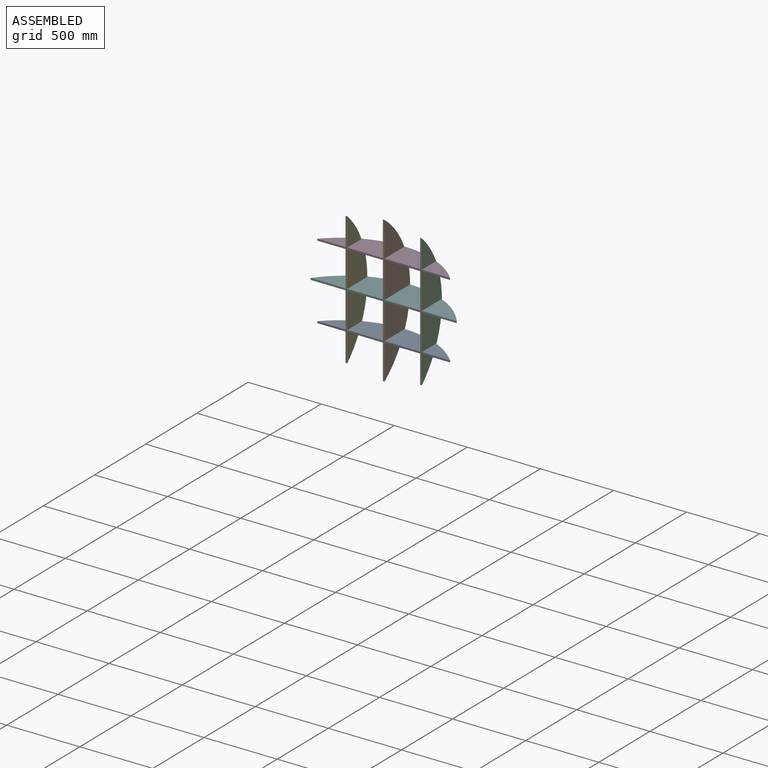
[diagram: assembled view]
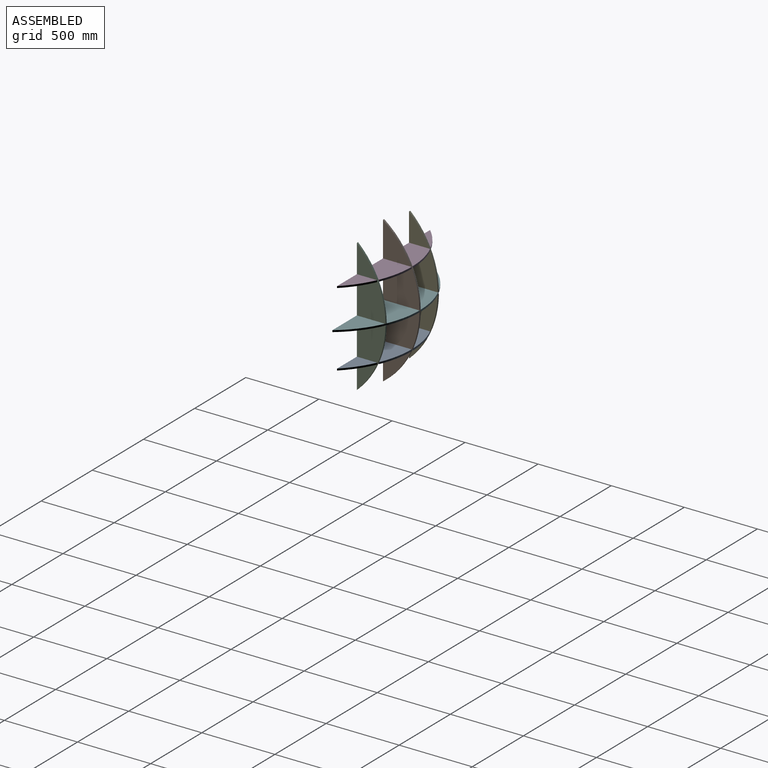
[diagram: assembled view, second angle]
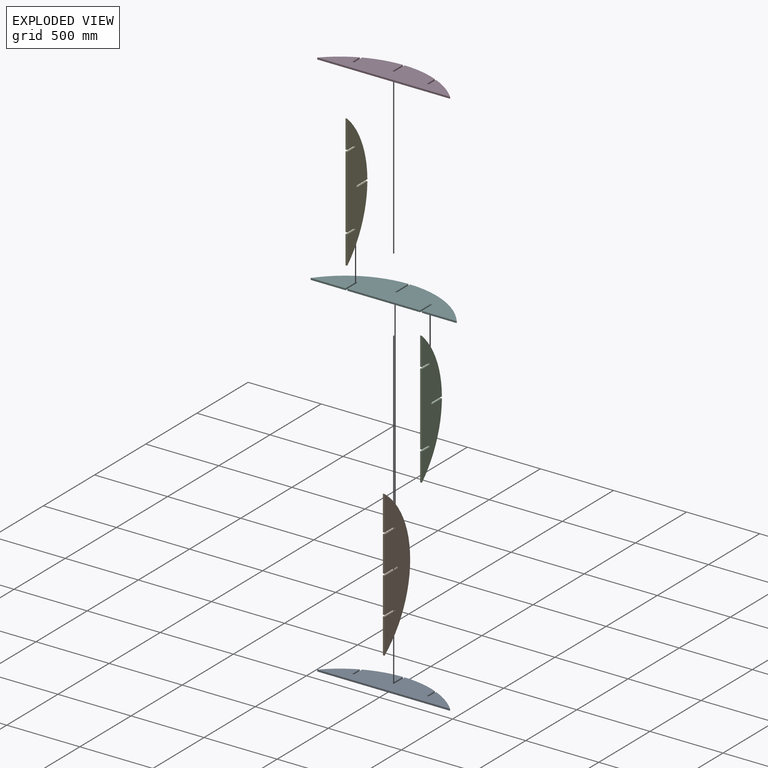
[diagram: exploded view]
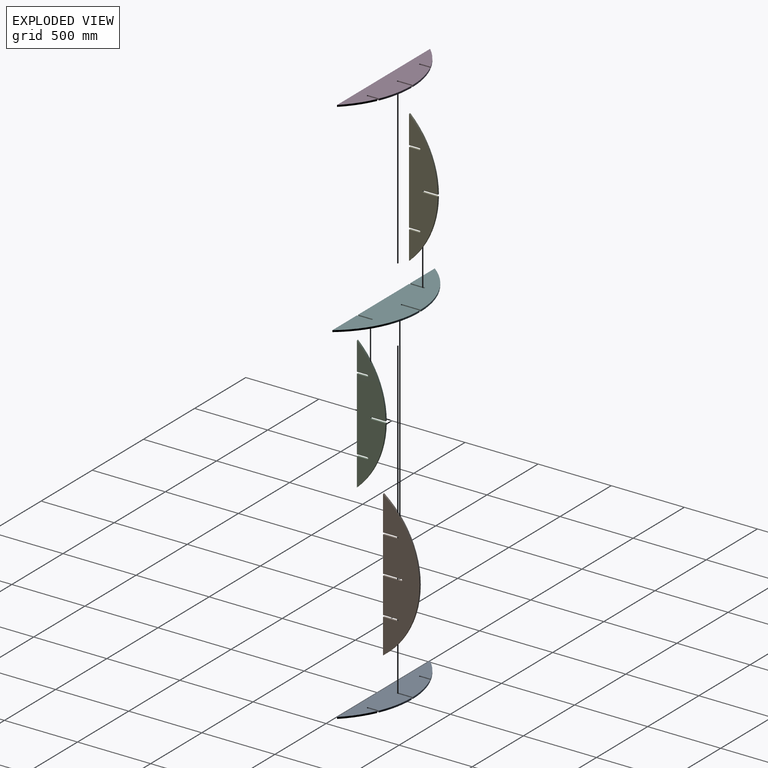
[diagram: exploded view, second angle]
ASSEMBLY  parts=6 mates=15
PART A: 16 faces, bbox 909x196x12 mm
  f0: plane 97.97x12mm, normal (1,0,0), area 1175.7mm2, adj f1,f13,f14,f15
  f1: cylinder r=625mm len=243mm, axis (0,0,-1), area 3001.3mm2, adj f0,f2,f14,f15
  f2: plane 73.26x12mm, normal (-1,0,0), area 879.1mm2, adj f1,f3,f14,f15
  f3: cylinder r=6mm len=12mm, axis (0,0,-1), area 226.2mm2, adj f2,f4,f14,f15
  f4: plane 67.89x12mm, normal (1,0,0), area 814.7mm2, adj f3,f5,f14,f15
  f5: cylinder r=625mm len=193.52mm, axis (0,0,-1), area 2876mm2, adj f4,f6,f14,f15
  f6: plane 909.03x12mm, normal (0,-1,0), area 10908.4mm2, adj f5,f7,f14,f15
  f7: cylinder r=625mm len=193.52mm, axis (0,0,-1), area 2876mm2, adj f6,f8,f14,f15
  f8: plane 67.89x12mm, normal (-1,0,0), area 814.7mm2, adj f7,f9,f14,f15
  f9: cylinder r=6mm len=12mm, axis (0,0,-1), area 226.2mm2, adj f8,f10,f14,f15
  f10: plane 73.26x12mm, normal (1,0,0), area 879.1mm2, adj f9,f11,f14,f15
  f11: cylinder r=625mm len=243mm, axis (0,0,-1), area 3001.3mm2, adj f10,f12,f14,f15
  f12: plane 97.97x12mm, normal (-1,0,0), area 1175.7mm2, adj f11,f13,f14,f15
  f13: cylinder r=6mm len=12mm, axis (0,0,-1), area 226.2mm2, adj f0,f12,f14,f15
  f14: plane 909.03x195.97mm, normal (0,0,1), area 120047mm2, adj f0,f1,f2,f3,f4,f5,f6,f7
  f15: plane 909.03x195.97mm, normal (0,0,-1), area 120047mm2, adj f0,f1,f2,f3,f4,f5,f6,f7
PART B: 16 faces, bbox 1000x250x12 mm
  f0: cylinder r=6mm len=12mm, axis (0,0,-1), area 226.2mm2, adj f1,f13,f14,f15
  f1: plane 98x12mm, normal (-1,0,0), area 1176mm2, adj f0,f2,f14,f15
  f2: plane 243x12mm, normal (0,-1,0), area 2916mm2, adj f1,f3,f14,f15
  f3: plane 125x12mm, normal (1,0,0), area 1500mm2, adj f2,f4,f14,f15
  f4: cylinder r=6mm len=12mm, axis (0,0,-1), area 226.2mm2, adj f3,f5,f14,f15
  f5: plane 125x12mm, normal (-1,0,0), area 1500mm2, adj f4,f6,f14,f15
  f6: plane 243x12mm, normal (0,-1,0), area 2916mm2, adj f5,f7,f14,f15
  f7: plane 98x12mm, normal (1,0,0), area 1176mm2, adj f6,f8,f14,f15
  f8: cylinder r=6mm len=12mm, axis (0,0,-1), area 226.2mm2, adj f7,f9,f14,f15
  f9: plane 98x12mm, normal (-1,0,0), area 1176mm2, adj f8,f10,f14,f15
  f10: plane 239x12mm, normal (0,-1,0), area 2868mm2, adj f9,f11,f14,f15
  f11: cylinder r=625mm len=1000mm, axis (0,0,-1), area 13909.4mm2, adj f10,f12,f14,f15
  f12: plane 239x12mm, normal (0,-1,0), area 2868mm2, adj f11,f13,f14,f15
  f13: plane 98x12mm, normal (1,0,0), area 1176mm2, adj f0,f12,f14,f15
  f14: plane 1000x250mm, normal (0,0,1), area 170703mm2, adj f0,f1,f2,f3,f4,f5,f6,f7
  f15: plane 1000x250mm, normal (0,0,-1), area 170703mm2, adj f0,f1,f2,f3,f4,f5,f6,f7
PART C: 16 faces, bbox 909x196x12 mm
  f0: plane 97.97x12mm, normal (1,0,0), area 1175.7mm2, adj f1,f13,f14,f15
  f1: cylinder r=625mm len=448.52mm, axis (0,0,-1), area 6035mm2, adj f0,f2,f14,f15
  f2: plane 193.52x12mm, normal (0,-1,0), area 2322.2mm2, adj f1,f3,f14,f15
  f3: plane 71x12mm, normal (1,0,0), area 852mm2, adj f2,f4,f14,f15
  f4: cylinder r=6mm len=12mm, axis (0,0,-1), area 226.2mm2, adj f3,f5,f14,f15
  f5: plane 71x12mm, normal (-1,0,0), area 852mm2, adj f4,f6,f14,f15
  f6: plane 498x12mm, normal (0,-1,0), area 5976mm2, adj f5,f7,f14,f15
  f7: plane 71x12mm, normal (1,0,0), area 852mm2, adj f6,f8,f14,f15
  f8: cylinder r=6mm len=12mm, axis (0,0,-1), area 226.2mm2, adj f7,f9,f14,f15
  f9: plane 71x12mm, normal (-1,0,0), area 852mm2, adj f8,f10,f14,f15
  f10: plane 193.52x12mm, normal (0,-1,0), area 2322.2mm2, adj f9,f11,f14,f15
  f11: cylinder r=625mm len=448.52mm, axis (0,0,-1), area 6035mm2, adj f10,f12,f14,f15
  f12: plane 97.97x12mm, normal (-1,0,0), area 1175.7mm2, adj f11,f13,f14,f15
  f13: cylinder r=6mm len=12mm, axis (0,0,-1), area 226.2mm2, adj f0,f12,f14,f15
  f14: plane 909.03x195.97mm, normal (0,0,1), area 120037.4mm2, adj f0,f1,f2,f3,f4,f5,f6,f7
  f15: plane 909.03x195.97mm, normal (0,0,-1), area 120037.4mm2, adj f0,f1,f2,f3,f4,f5,f6,f7
PART D: same geometry as A
PART E: same geometry as C
PART F: 16 faces, bbox 1000x250x12 mm
  f0: plane 98x12mm, normal (-1,0,0), area 1176mm2, adj f1,f13,f14,f15
  f1: plane 239.02x12mm, normal (0,-1,0), area 2868.3mm2, adj f0,f2,f14,f15
  f2: cylinder r=625mm len=494.02mm, axis (0,0,-1), area 6883.1mm2, adj f1,f3,f14,f15
  f3: plane 125x12mm, normal (-1,0,0), area 1500mm2, adj f2,f4,f14,f15
  f4: cylinder r=6mm len=12mm, axis (0,0,-1), area 226.2mm2, adj f3,f5,f14,f15
  f5: plane 125x12mm, normal (1,0,0), area 1500mm2, adj f4,f6,f14,f15
  f6: cylinder r=625mm len=494.02mm, axis (0,0,-1), area 6883.1mm2, adj f5,f7,f14,f15
  f7: plane 239.02x12mm, normal (0,-1,0), area 2868.3mm2, adj f6,f8,f14,f15
  f8: plane 98x12mm, normal (1,0,0), area 1176mm2, adj f7,f9,f14,f15
  f9: cylinder r=6mm len=12mm, axis (0,0,-1), area 226.2mm2, adj f8,f10,f14,f15
  f10: plane 98x12mm, normal (-1,0,0), area 1176mm2, adj f9,f11,f14,f15
  f11: plane 498x12mm, normal (0,-1,0), area 5976mm2, adj f10,f12,f14,f15
  f12: plane 98x12mm, normal (1,0,0), area 1176mm2, adj f11,f13,f14,f15
  f13: cylinder r=6mm len=12mm, axis (0,0,-1), area 226.2mm2, adj f0,f12,f14,f15
  f14: plane 1000.04x250mm, normal (0,0,1), area 170731.6mm2, adj f0,f1,f2,f3,f4,f5,f6,f7
  f15: plane 1000.04x250mm, normal (0,0,-1), area 170731.6mm2, adj f0,f1,f2,f3,f4,f5,f6,f7
PLACE A t=(44.31,42.79,-149.06)mm
PLACE B rot(axis=(0,-1,0),90deg) t=(504.83,42.79,-388.06)mm
PLACE C rot(axis=(0,-1,0),90deg) t=(759.83,42.79,-342.58)mm
PLACE D t=(44.31,42.79,360.94)mm
PLACE E rot(axis=(0,1,0),90deg) t=(237.83,42.79,566.45)mm
PLACE F t=(-1.19,42.79,105.94)mm fixed
MATE planar B.f13 <-> A.f15  axis (0,0,1) through (504.83,42.79,-149.06)mm
MATE planar A.f12 <-> B.f15  axis (-1,0,0) through (504.83,189.77,-143.06)mm
MATE planar B.f3 <-> F.f15  axis (0,0,1) through (498.83,105.29,105.94)mm
MATE planar A.f6 <-> B.f12  axis (0,-1,0) through (498.83,42.79,-143.06)mm
MATE planar B.f10 <-> D.f6  axis (0,-1,0) through (498.83,42.79,492.44)mm
MATE planar C.f6 <-> D.f6  axis (0,-1,0) through (753.83,42.79,111.94)mm
MATE planar E.f6 <-> D.f6  axis (0,-1,0) through (243.83,42.79,111.94)mm
MATE planar C.f14 <-> D.f10  axis (-1,0,0) through (747.83,42.79,111.94)mm
MATE planar D.f0 <-> B.f14  axis (1,0,0) through (492.83,189.77,360.94)mm
MATE planar F.f14 <-> C.f12  axis (0,0,1) through (498.83,42.79,117.94)mm
MATE planar B.f12 <-> F.f11  axis (0,-1,0) through (498.83,42.79,-268.56)mm
MATE planar B.f14 <-> F.f5  axis (-1,0,0) through (492.83,145.8,111.94)mm
MATE planar E.f12 <-> F.f15  axis (0,0,1) through (243.83,189.77,105.94)mm
MATE planar D.f4 <-> E.f15  axis (1,0,0) through (237.83,147.74,366.94)mm
MATE planar D.f14 <-> B.f9  axis (0,0,1) through (498.83,42.79,372.94)mm
